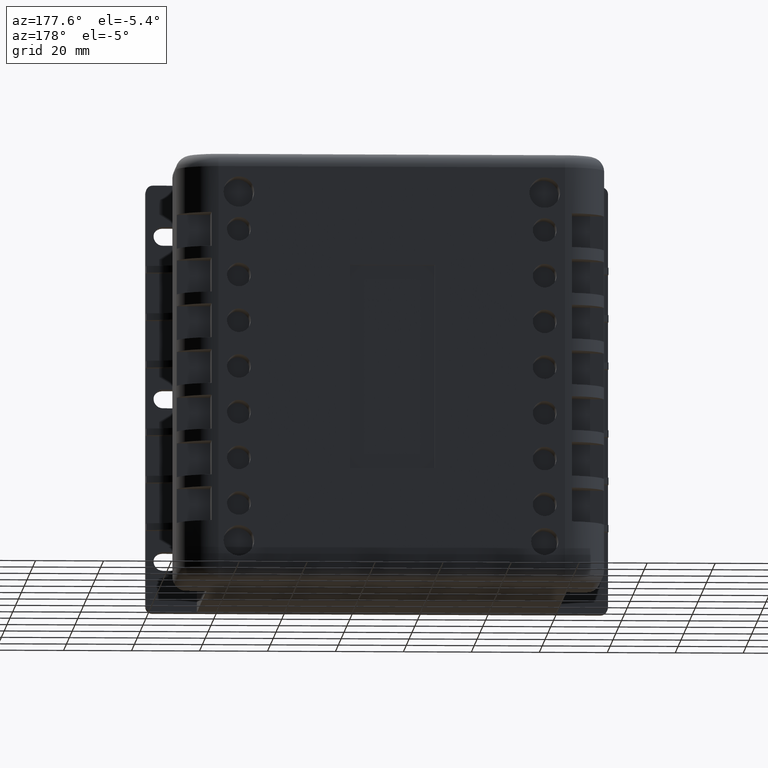
[diagram: clean part render]
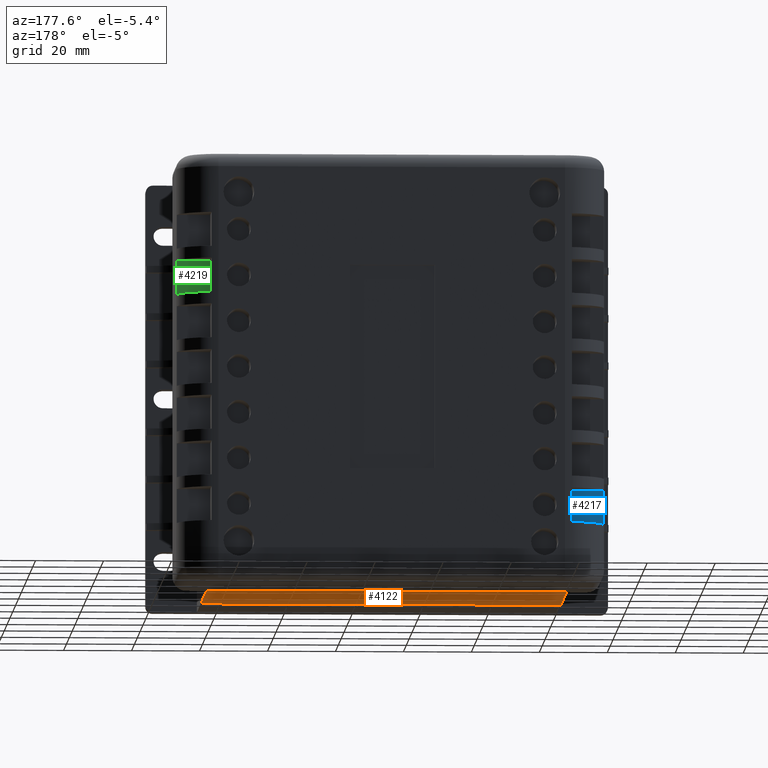
[diagram: same view with three faces highlighted in distinct colors, each labeled with its STEP entity id]
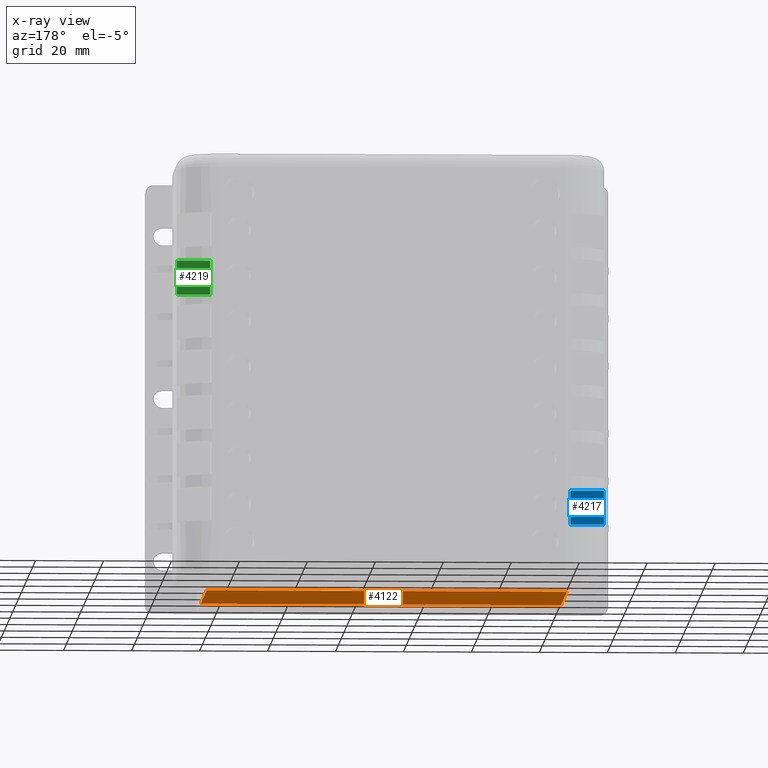
[diagram: x-ray of the same camera — body ghosted, the three highlighted faces saturated]
A machine part, auxiliary view with three faces highlighted in distinct colors.
The next image is the same camera in x-ray (body ghosted, the three faces saturated) — at least one of them is partly hidden behind the body in this view.
Their STEP definitions:

[orange] entity #4122 — the highlighted planar face has unit normal (-0, 0, -1).
#409=FACE_OUTER_BOUND('',#666,.T.);
#666=EDGE_LOOP('',(#3038,#3039,#3040,#3041));
#1046=LINE('',#6500,#1438);
#1047=LINE('',#6502,#1439);
#1048=LINE('',#6504,#1440);
#1049=LINE('',#6505,#1441);
#1438=VECTOR('',#5319,10.);
#1439=VECTOR('',#5320,10.);
#1440=VECTOR('',#5321,10.);
#1441=VECTOR('',#5322,10.);
#1794=VERTEX_POINT('',#6498);
#1795=VERTEX_POINT('',#6499);
#1796=VERTEX_POINT('',#6501);
#1797=VERTEX_POINT('',#6503);
#2238=EDGE_CURVE('',#1794,#1795,#1046,.T.);
#2239=EDGE_CURVE('',#1795,#1796,#1047,.T.);
#2240=EDGE_CURVE('',#1797,#1796,#1048,.T.);
#2241=EDGE_CURVE('',#1794,#1797,#1049,.T.);
#3038=ORIENTED_EDGE('',*,*,#2238,.T.);
#3039=ORIENTED_EDGE('',*,*,#2239,.T.);
#3040=ORIENTED_EDGE('',*,*,#2240,.F.);
#3041=ORIENTED_EDGE('',*,*,#2241,.F.);
#3649=PLANE('',#4528);
#4122=ADVANCED_FACE('',(#409),#3649,.T.);
#4528=AXIS2_PLACEMENT_3D('',#6497,#5317,#5318);
#5317=DIRECTION('center_axis',(-3.72104200575949E-32,0.,-1.));
#5318=DIRECTION('ref_axis',(-1.,0.,3.72104200575949E-32));
#5319=DIRECTION('',(-1.,0.,3.72104200575949E-32));
#5320=DIRECTION('',(0.,1.,0.));
#5321=DIRECTION('',(-1.,0.,3.72104200575949E-32));
#5322=DIRECTION('',(0.,1.,0.));
#6497=CARTESIAN_POINT('Origin',(0.,0.,0.));
#6498=CARTESIAN_POINT('',(0.,0.,0.));
#6499=CARTESIAN_POINT('',(-106.,0.,3.94430452610506E-30));
#6500=CARTESIAN_POINT('',(0.,0.,0.));
#6501=CARTESIAN_POINT('',(-106.,42.,3.94430452610506E-30));
#6502=CARTESIAN_POINT('',(-106.,0.,3.94430452610506E-30));
#6503=CARTESIAN_POINT('',(0.,42.,0.));
#6504=CARTESIAN_POINT('',(0.,42.,0.));
#6505=CARTESIAN_POINT('',(0.,0.,0.));

[blue] entity #4217 — the highlighted planar face has unit normal (0, 1, 0).
#504=FACE_OUTER_BOUND('',#789,.T.);
#789=EDGE_LOOP('',(#3424,#3425,#3426,#3427));
#1132=LINE('',#6833,#1524);
#1158=LINE('',#6886,#1550);
#1160=LINE('',#6889,#1552);
#1168=LINE('',#6911,#1560);
#1524=VECTOR('',#5679,10.);
#1550=VECTOR('',#5731,10.);
#1552=VECTOR('',#5735,10.);
#1560=VECTOR('',#5771,10.);
#1902=VERTEX_POINT('',#6826);
#1905=VERTEX_POINT('',#6831);
#1918=VERTEX_POINT('',#6883);
#1919=VERTEX_POINT('',#6885);
#2394=EDGE_CURVE('',#1905,#1902,#1132,.T.);
#2420=EDGE_CURVE('',#1919,#1918,#1158,.T.);
#2422=EDGE_CURVE('',#1918,#1902,#1160,.T.);
#2430=EDGE_CURVE('',#1905,#1919,#1168,.T.);
#3424=ORIENTED_EDGE('',*,*,#2394,.F.);
#3425=ORIENTED_EDGE('',*,*,#2430,.T.);
#3426=ORIENTED_EDGE('',*,*,#2420,.T.);
#3427=ORIENTED_EDGE('',*,*,#2422,.T.);
#3715=PLANE('',#4694);
#4217=ADVANCED_FACE('',(#504),#3715,.T.);
#4694=AXIS2_PLACEMENT_3D('',#6912,#5772,#5773);
#5679=DIRECTION('',(-1.40980701539702E-16,0.,-1.));
#5731=DIRECTION('',(-7.93875538652274E-16,0.,-1.));
#5735=DIRECTION('',(-1.,0.,6.82853236189759E-16));
#5771=DIRECTION('',(1.,0.,-6.82853236189759E-16));
#5772=DIRECTION('center_axis',(0.,1.,0.));
#5773=DIRECTION('ref_axis',(-6.82853236189759E-16,0.,-1.));
#6826=CARTESIAN_POINT('',(-125.832159566199,27.,17.5000000000001));
#6831=CARTESIAN_POINT('',(-125.832159566199,27.,27.5000000000001));
#6833=CARTESIAN_POINT('',(-125.832159566199,27.,31.5));
#6883=CARTESIAN_POINT('',(-116.,27.,17.5000000000001));
#6885=CARTESIAN_POINT('',(-116.,27.,27.5000000000001));
#6886=CARTESIAN_POINT('',(-116.,27.,17.5000000000001));
#6889=CARTESIAN_POINT('',(-126.,27.,17.5000000000001));
#6911=CARTESIAN_POINT('',(-116.,27.,27.5000000000001));
#6912=CARTESIAN_POINT('Origin',(-121.,27.,22.5000000000001));

[green] entity #4219 — the highlighted planar face has unit normal (0, -1, 0).
#506=FACE_OUTER_BOUND('',#798,.T.);
#798=EDGE_LOOP('',(#3460,#3461,#3462,#3463));
#1169=LINE('',#6918,#1561);
#1183=LINE('',#6972,#1575);
#1184=LINE('',#6974,#1576);
#1185=LINE('',#6975,#1577);
#1561=VECTOR('',#5778,10.);
#1575=VECTOR('',#5820,10.);
#1576=VECTOR('',#5821,10.);
#1577=VECTOR('',#5822,10.);
#1921=VERTEX_POINT('',#6915);
#1922=VERTEX_POINT('',#6917);
#1948=VERTEX_POINT('',#6971);
#1949=VERTEX_POINT('',#6973);
#2432=EDGE_CURVE('',#1921,#1922,#1169,.T.);
#2459=EDGE_CURVE('',#1948,#1921,#1183,.T.);
#2460=EDGE_CURVE('',#1949,#1948,#1184,.T.);
#2461=EDGE_CURVE('',#1922,#1949,#1185,.T.);
#3460=ORIENTED_EDGE('',*,*,#2432,.F.);
#3461=ORIENTED_EDGE('',*,*,#2459,.F.);
#3462=ORIENTED_EDGE('',*,*,#2460,.F.);
#3463=ORIENTED_EDGE('',*,*,#2461,.F.);
#3716=PLANE('',#4710);
#4219=ADVANCED_FACE('',(#506),#3716,.F.);
#4710=AXIS2_PLACEMENT_3D('',#6970,#5818,#5819);
#5778=DIRECTION('',(3.41426618094879E-16,0.,1.));
#5818=DIRECTION('center_axis',(0.,-1.,0.));
#5819=DIRECTION('ref_axis',(0.,0.,-1.));
#5820=DIRECTION('',(1.,0.,0.));
#5821=DIRECTION('',(1.11022302462516E-16,0.,-1.));
#5822=DIRECTION('',(-1.,0.,0.));
#6915=CARTESIAN_POINT('',(-0.167840433800735,27.,85.));
#6917=CARTESIAN_POINT('',(-0.167840433800732,27.,95.));
#6918=CARTESIAN_POINT('',(-0.167840433800732,27.,94.5));
#6970=CARTESIAN_POINT('Origin',(-4.99999999999997,27.,90.));
#6971=CARTESIAN_POINT('',(-9.99999999999998,27.,85.));
#6972=CARTESIAN_POINT('',(2.90212625380648E-14,27.,85.));
#6973=CARTESIAN_POINT('',(-9.99999999999998,27.,95.));
#6974=CARTESIAN_POINT('',(-9.99999999999998,27.,85.));
#6975=CARTESIAN_POINT('',(-9.99999999999998,27.,95.));